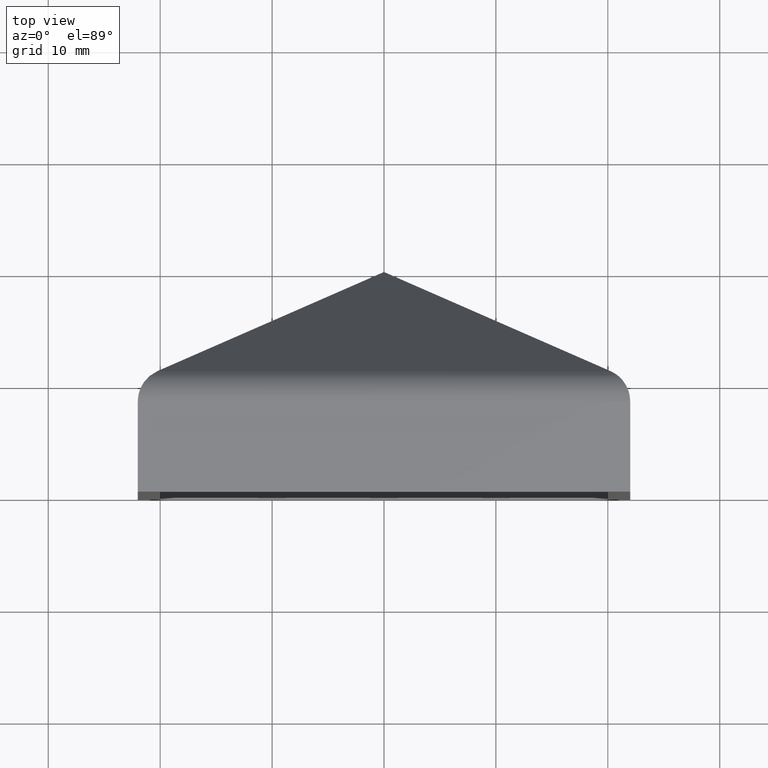
[diagram: clean part render]
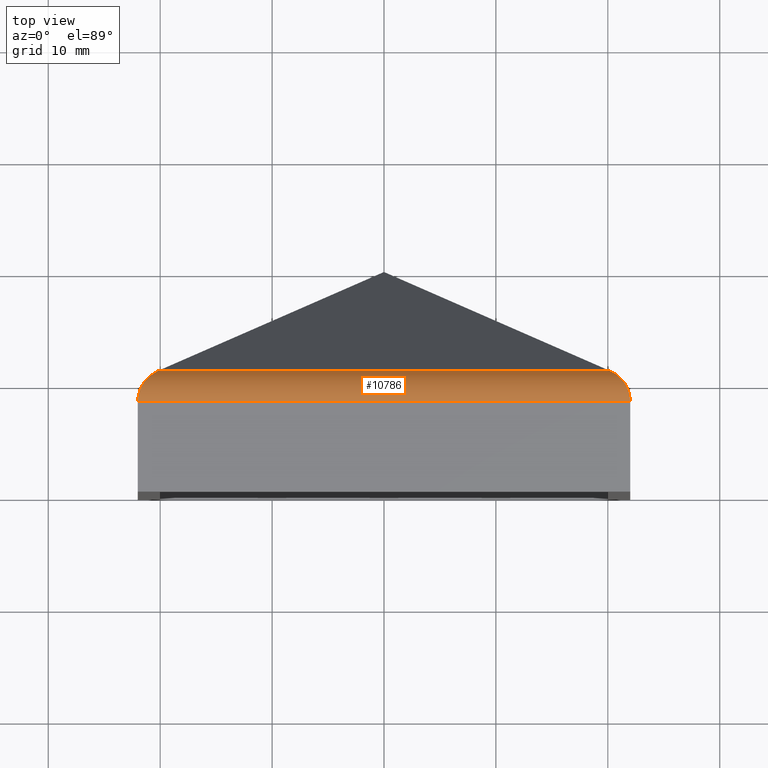
[diagram: same view with one face highlighted and labeled with its STEP entity id]
A machine part, top view. The second image highlights one B-rep face of the part: STEP entity #10786.
In plain terms, the highlighted cylindrical surface (edge-blend (fillet) strip) has radius 3 mm, axis along (1, -0, -0).
Its self-contained STEP definition (entity closure, byte-faithful):
#213 = AXIS2_PLACEMENT_3D ( 'NONE', #2195, #11079, #4070 ) ;
#511 = VERTEX_POINT ( 'NONE', #6853 ) ;
#787 = CARTESIAN_POINT ( 'NONE',  ( -20.24242346705347400, 10.79968649216877500, 20.24242346705349500 ) ) ;
#1218 = EDGE_CURVE ( 'NONE', #8340, #511, #9771, .T. ) ;
#1388 = EDGE_CURVE ( 'NONE', #5013, #10744, #10999, .T. ) ;
#2195 = CARTESIAN_POINT ( 'NONE',  ( -22.00000000000002100, 8.069048484575164400, 19.00000000000001100 ) ) ;
#2214 = DIRECTION ( 'NONE',  ( 1.000000000000000000, -0.0000000000000000000, -4.440892098500626200E-016 ) ) ;
#2241 = CARTESIAN_POINT ( 'NONE',  ( 20.24242346705348100, 10.79968649216877500, 20.24242346705347700 ) ) ;
#2272 = CARTESIAN_POINT ( 'NONE',  ( 20.24242346705348100, 10.79968649216877500, 20.24242346705347700 ) ) ;
#2706 = CARTESIAN_POINT ( 'NONE',  ( -22.00000000000002100, 8.069048484575164400, 22.00000000000001400 ) ) ;
#2824 = ORIENTED_EDGE ( 'NONE', *, *, #5509, .T. ) ;
#4070 = DIRECTION ( 'NONE',  ( 0.0000000000000000000, 0.0000000000000000000, -1.000000000000000000 ) ) ;
#4547 = ORIENTED_EDGE ( 'NONE', *, *, #5676, .T. ) ;
#4577 = CARTESIAN_POINT ( 'NONE',  ( 22.00000000000001100, 8.069048484575164400, 21.99999999999999300 ) ) ;
#4674 = DIRECTION ( 'NONE',  ( 1.000000000000000000, -0.0000000000000000000, -4.440892098500626200E-016 ) ) ;
#4730 = CARTESIAN_POINT ( 'NONE',  ( -21.34461576235451100, 10.29819578960058400, 21.34461576235451800 ) ) ;
#4927 = CARTESIAN_POINT ( 'NONE',  ( -22.00000000000002100, 8.069048484575164400, 22.00000000000001400 ) ) ;
#5001 = VECTOR ( 'NONE', #4674, 1000.000000000000000 ) ;
#5013 = VERTEX_POINT ( 'NONE', #787 ) ;
#5509 = EDGE_CURVE ( 'NONE', #511, #10744, #6602, .T. ) ;
#5676 = EDGE_CURVE ( 'NONE', #5013, #8340, #6152, .T. ) ;
#5789 = VECTOR ( 'NONE', #2214, 1000.000000000000000 ) ;
#5875 = ORIENTED_EDGE ( 'NONE', *, *, #1218, .T. ) ;
#6152 =( BOUNDED_CURVE ( )  B_SPLINE_CURVE ( 3, ( #8407, #4730, #9707, #2706 ),
 .UNSPECIFIED., .F., .T. ) 
 B_SPLINE_CURVE_WITH_KNOTS ( ( 4, 4 ),
 ( 5.139388016138579700, 6.283185307179586200 ),
 .UNSPECIFIED. ) 
 CURVE ( )  GEOMETRIC_REPRESENTATION_ITEM ( )  RATIONAL_B_SPLINE_CURVE ( ( 1.000000000000000000, 0.8939165922272371800, 0.8939165922272371800, 1.000000000000000000 ) ) 
 REPRESENTATION_ITEM ( '' )  );
#6192 = CARTESIAN_POINT ( 'NONE',  ( 22.00000000000000000, 9.279965814777055400, 22.00000000000000000 ) ) ;
#6393 = CYLINDRICAL_SURFACE ( 'NONE', #213, 2.999999999999999100 ) ;
#6602 =( BOUNDED_CURVE ( )  B_SPLINE_CURVE ( 3, ( #4577, #6192, #7104, #2272 ),
 .UNSPECIFIED., .F., .F. ) 
 B_SPLINE_CURVE_WITH_KNOTS ( ( 4, 4 ),
 ( 0.0000000000000000000, 1.143797291041004600 ),
 .UNSPECIFIED. ) 
 CURVE ( )  GEOMETRIC_REPRESENTATION_ITEM ( )  RATIONAL_B_SPLINE_CURVE ( ( 1.000000000000000000, 0.8939165922272375200, 0.8939165922272375200, 1.000000000000000000 ) ) 
 REPRESENTATION_ITEM ( '' )  );
#6853 = CARTESIAN_POINT ( 'NONE',  ( 22.00000000000001100, 8.069048484575164400, 21.99999999999999300 ) ) ;
#7104 = CARTESIAN_POINT ( 'NONE',  ( 21.34461576235450800, 10.29819578960057700, 21.34461576235450800 ) ) ;
#7396 = EDGE_LOOP ( 'NONE', ( #4547, #5875, #2824, #9335 ) ) ;
#8340 = VERTEX_POINT ( 'NONE', #4927 ) ;
#8407 = CARTESIAN_POINT ( 'NONE',  ( -20.24242346705347400, 10.79968649216877500, 20.24242346705349500 ) ) ;
#9335 = ORIENTED_EDGE ( 'NONE', *, *, #1388, .F. ) ;
#9633 = CARTESIAN_POINT ( 'NONE',  ( -22.00000000000002100, 8.069048484575164400, 22.00000000000001400 ) ) ;
#9707 = CARTESIAN_POINT ( 'NONE',  ( -22.00000000000000000, 9.279965814777057200, 22.00000000000001800 ) ) ;
#9771 = LINE ( 'NONE', #9633, #5001 ) ;
#10744 = VERTEX_POINT ( 'NONE', #2241 ) ;
#10786 = ADVANCED_FACE ( 'NONE', ( #12707 ), #6393, .T. ) ;
#10999 = LINE ( 'NONE', #12088, #5789 ) ;
#11079 = DIRECTION ( 'NONE',  ( 1.000000000000000000, -0.0000000000000000000, -4.440892098500626200E-016 ) ) ;
#12088 = CARTESIAN_POINT ( 'NONE',  ( -22.00000000000002100, 10.79968649216877500, 20.24242346705349500 ) ) ;
#12707 = FACE_OUTER_BOUND ( 'NONE', #7396, .T. ) ;